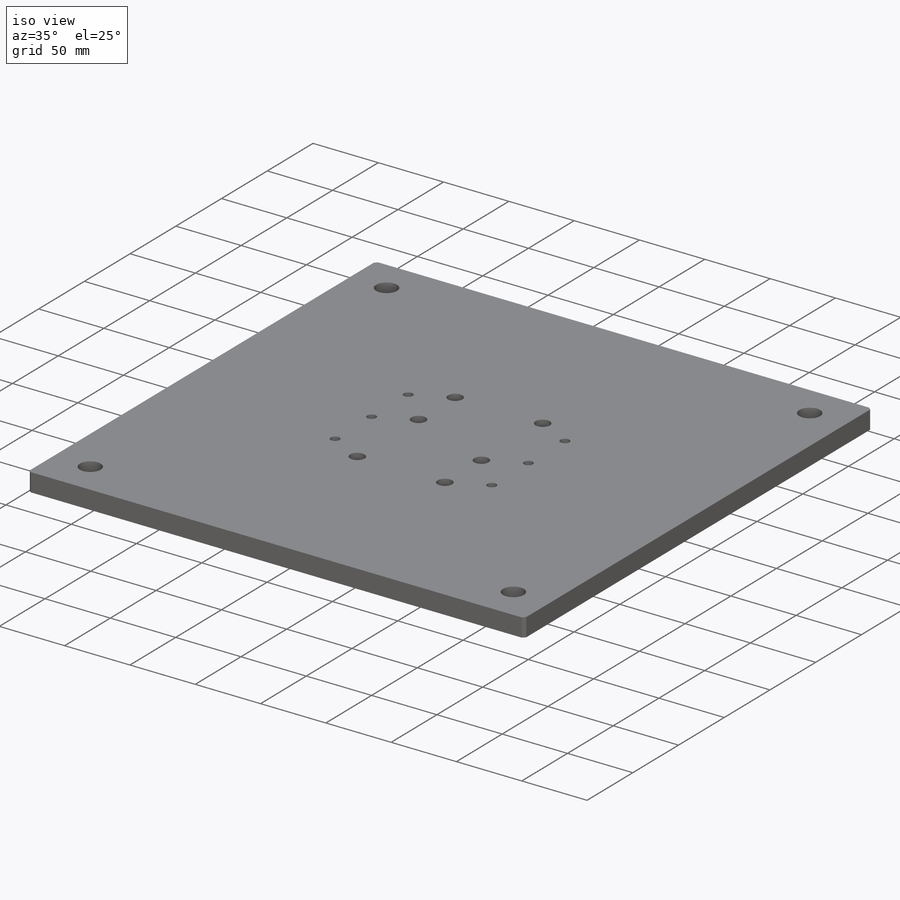
[diagram: iso view]
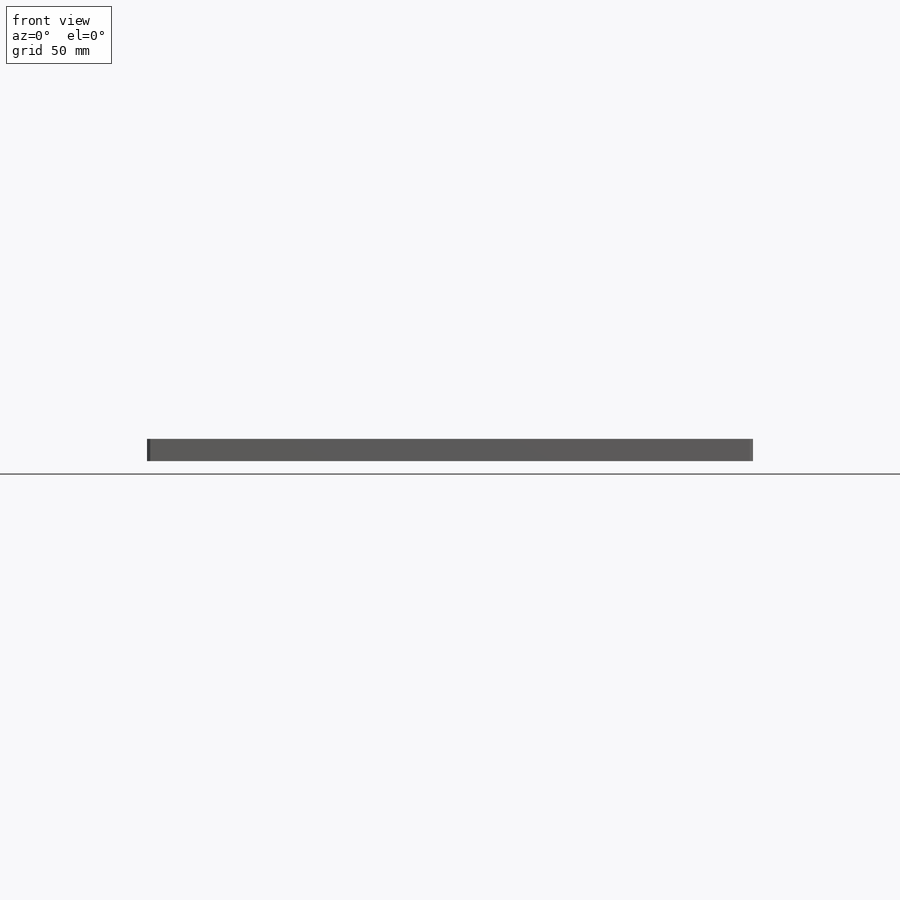
[diagram: front view]
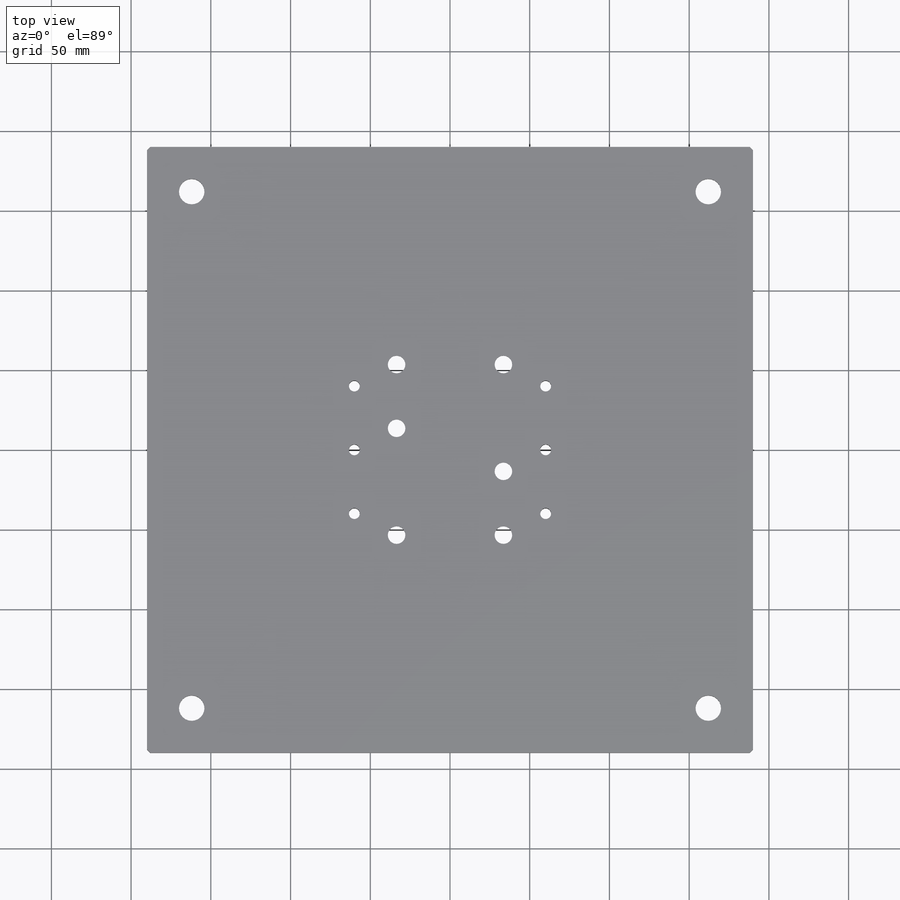
[diagram: top view]
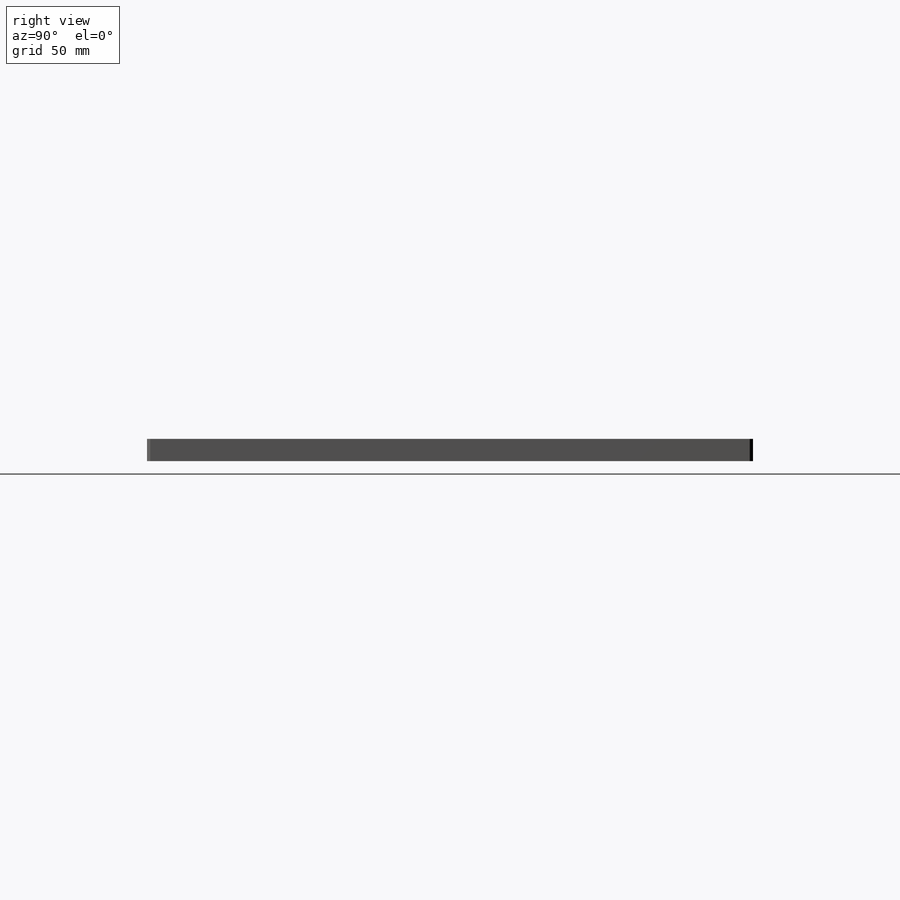
[diagram: right view]
SOLIDWORKS PART (.sldprt)
format: sldprt  version: not decoded by parser v0  size: 286,208 bytes
history: native  units: mm
features: sketch x6, plane x3, hole x2, material x1, extrude x1, chamfer x1, mirror x1, cut_extrude x1 (+10 scaffold rows collapsed)
feature tree (26):
  scaffold x10  (default folders/planes/origin — collapsed)
  material  "材质 <未指定>"
  plane  "前视基准面"
  plane  "上视基准面"
  plane  "右视基准面"
  sketch  "草图1"  dims[c1.D1=~190.663857mm c1.D2=261.2801mm c2.D1=300.0mm c2.D2=300.0mm c3.D1=~195.141217mm c3.D2=~259.286245mm c4.D1=380.0mm c4.D2=380.0mm]
  extrude  "凸台-拉伸1"  Depth=14mm
  chamfer  "倒角1"  Distance=2mm Angle=45deg
  hole  "M8 螺纹孔的螺纹孔钻头1"  [1 undecoded]
  sketch  "草图3"  dims[D1=40.0mm D2=40.0mm D3=60.0mm D4=60.0mm D5=40.0mm D6=60.0mm D7=12.7mm]
  sketch  "草图2"  dims[hole-wizard template sketch: 59 standard entries collapsed; hole parameters kept: c18.通孔孔直径=6.8mm c18.通孔孔深度=14.0mm]
  mirror  "镜向1"
  hole  "M10 六角头螺栓的柱形沉头孔1"  [1 undecoded]
  sketch  "草图5"  dims[D1=13.5mm D2=33.5mm D3=33.5mm D4=40.0mm D5=33.5mm D6=53.5mm D7=13.5mm D8=33.5mm D9=33.5mm D10=40.0mm D11=33.5mm D12=67.0mm]
  sketch  "草图4"  dims[hole-wizard template sketch: 41 standard entries collapsed; hole parameters kept: c12.通孔孔直径=11.0mm c12.通孔孔深度=14.0mm c12.柱形沉头孔直径=22.0mm c12.柱形沉头孔深度=10.5mm]
  sketch  "草图6"  dims[D1=16.0mm D2=28.0mm D3=28.0mm]
  cut_extrude  "切除-拉伸1"  [1 undecoded]
decode coverage: 8 of 12 modeling features carry decoded parameters
note: ~ marks probable driven/reference dimensions
note: 3 parameter values undecoded
summary: no parameter record found for 3 features
note: suppression state not decoded; provenance and decode notes live in map.json
